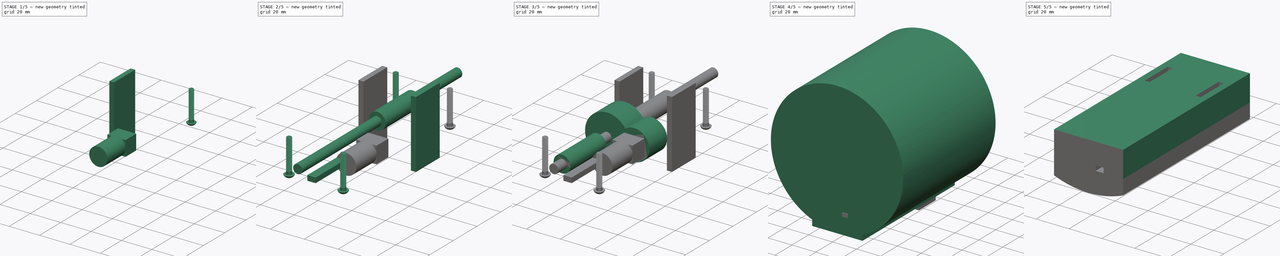
[diagram: build sequence overview — one tinted view per stage of 5, left to right]
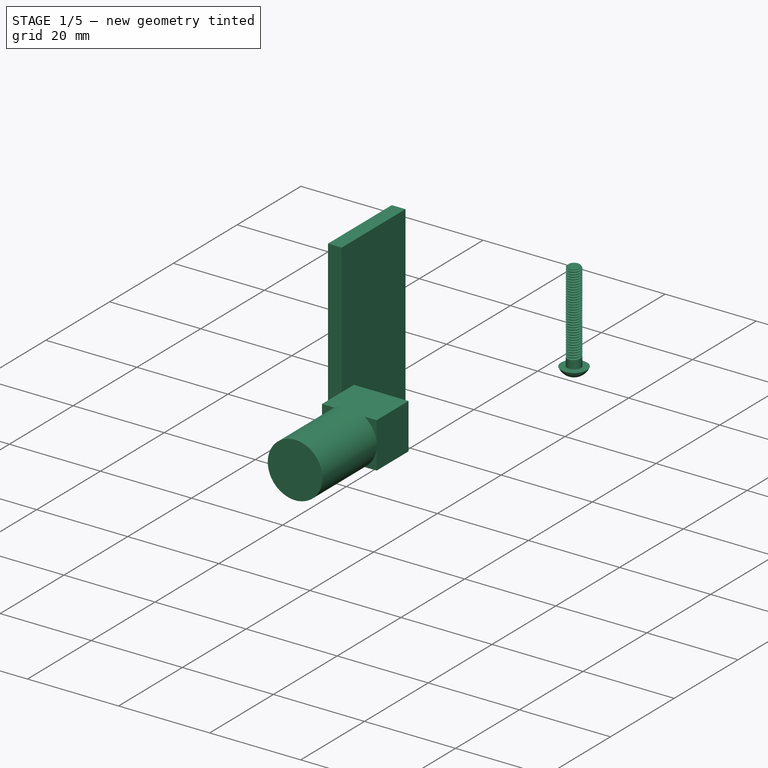
[diagram: stage 1 of 5 — iso view after this stage's code; geometry added in this stage tinted green]
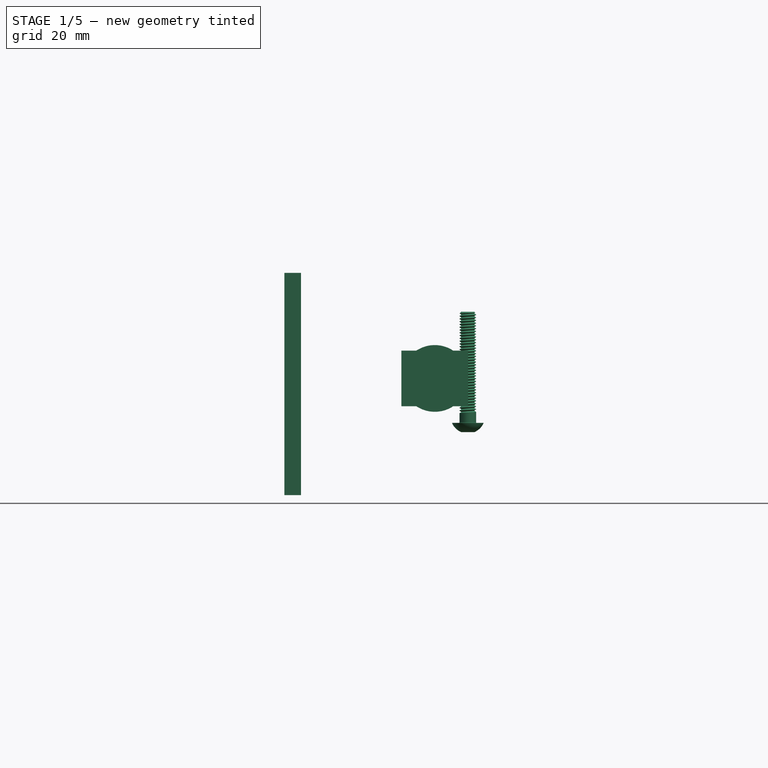
[diagram: stage 1 of 5 — front view after this stage's code; geometry added in this stage tinted green]
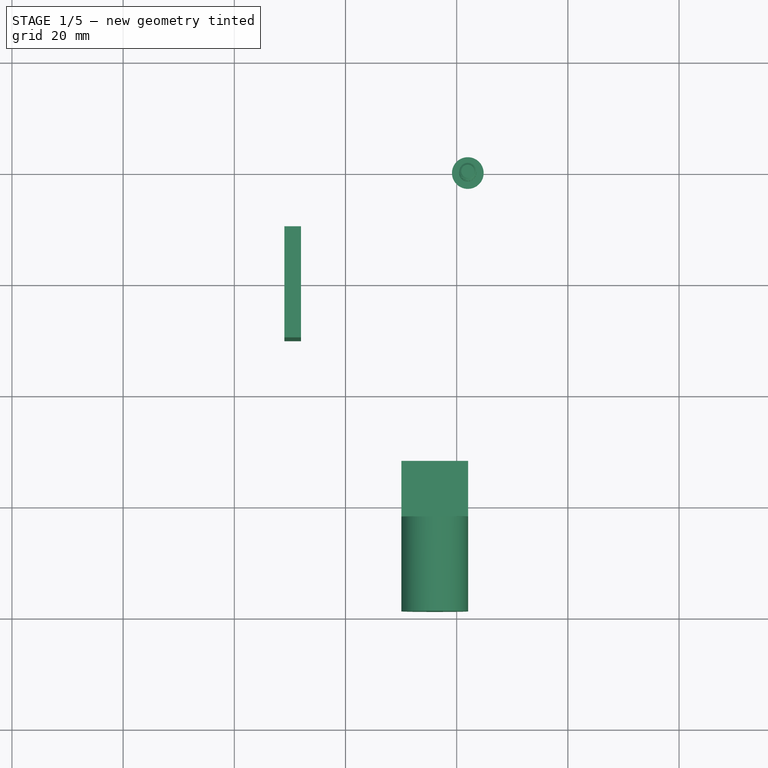
[diagram: stage 1 of 5 — top view after this stage's code; geometry added in this stage tinted green]
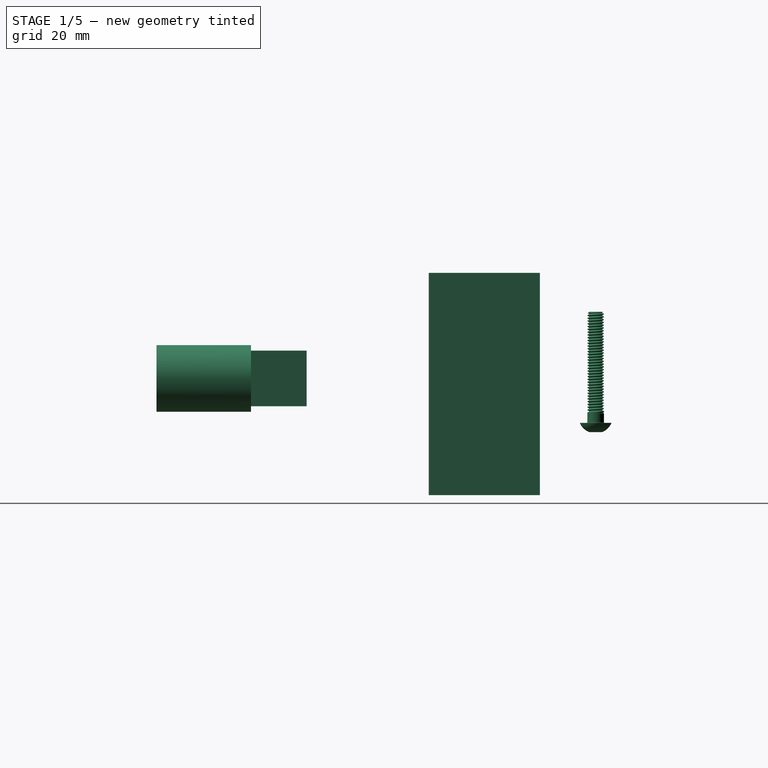
[diagram: stage 1 of 5 — right view after this stage's code; geometry added in this stage tinted green]
FCSTD DOCUMENT  (FreeCAD 0.16R6705 (Git))
Label: corpo_con_scassi2.6
License: All rights reserved
LicenseURL: http://it.wikipedia.org/wiki/<copyright redacted>
objects: Sketcher::SketchObject×13, PartDesign::Pad×12, Part::MultiFuse×3, Part::Fuse×2, Part::FeaturePython×2, Part::Cut×2, Part::Mirroring×1, PartDesign::Pocket×1, Part::MultiCommon×1
note: 50 computed .brp shape members not serialized (recipe doc carries the construction recipe); baked Part::Feature solids carry a one-line shape summary decoded from their .brp

FEATURE [Sketcher::SketchObject] Sketch013
  Placement = pos=(0,-22,0) rot=(1,0,0;1.5708rad)
  sketch-geometry (1):
    g0: Circle CenterX=16.0596 CenterY=9e-06 CenterZ=0 NormalX=0 NormalY=0 NormalZ=1 Radius=6
  constraints (1):
    c: Radius(g0) = 6
FEATURE [PartDesign::Pad] Pad008  label="scasso_motore"
  Length = 17
  Length2 = 100
  Placement = pos=(0,-22,0) rot=(1,0,0;1.5708rad)
  Sketch = -> Sketch013
  Type = 0
FEATURE [Sketcher::SketchObject] Sketch018
  Placement = pos=(0,0,-1) rot=(1,0,0;3.14159rad)
  sketch-geometry (4):
    g0: LineSegment StartX=20 StartY=-9.96359 StartZ=0 EndX=23 EndY=-9.96359 EndZ=0
    g1: LineSegment StartX=23 StartY=-9.96359 StartZ=0 EndX=23 EndY=-29.9636 EndZ=0
    g2: LineSegment StartX=23 StartY=-29.9636 StartZ=0 EndX=20 EndY=-29.9636 EndZ=0
    g3: LineSegment StartX=20 StartY=-29.9636 StartZ=0 EndX=20 EndY=-9.96359 EndZ=0
  constraints (11):
    c: Coincident(g0,g1)
    c: Coincident(g1,g2)
    c: Coincident(g2,g3)
    c: Coincident(g3,g0)
    c: Horizontal(g0)
    c: Horizontal(g2)
    c: Vertical(g1)
    c: Vertical(g3)
    c: DistanceY(g2,g0) = 20
    c: DistanceX(g-1,g0) = 20
    c: DistanceX(g2,g1) = 3
FEATURE [PartDesign::Pad] Pad012  label="buco_per_fascetta"
  Length = 40
  Length2 = 100
  Midplane = true
  Placement = pos=(0,0,-1) rot=(1,0,0;3.14159rad)
  Sketch = -> Sketch018
  Type = 0
FEATURE [Part::Mirroring] Part__Mirroring  label="buco_per_fascetta (Mirror #1)"
  Base = (6,19.96,-1)
  Normal = (1,0,-1.19209e-07)
  Source = -> Pad012
FEATURE [Sketcher::SketchObject] Sketch021
  ExternalGeometry = -> [Pad008]
  Placement = pos=(0,-22,0) rot=(-1,0,0;1.5708rad)
  Support = -> Pad008 [Face2]
  sketch-geometry (4):
    g0: LineSegment StartX=10.0596 StartY=4.99999 StartZ=0 EndX=22.0596 EndY=4.99999 EndZ=0
    g1: LineSegment StartX=22.0596 StartY=4.99999 StartZ=0 EndX=22.0596 EndY=-5.00001 EndZ=0
    g2: LineSegment StartX=22.0596 StartY=-5.00001 StartZ=0 EndX=10.0596 EndY=-5.00001 EndZ=0
    g3: LineSegment StartX=10.0596 StartY=-5.00001 StartZ=0 EndX=10.0596 EndY=4.99999 EndZ=0
  constraints (12):
    c: Coincident(g0,g1)
    c: Coincident(g1,g2)
    c: Coincident(g2,g3)
    c: Coincident(g3,g0)
    c: Horizontal(g0)
    c: Horizontal(g2)
    c: Vertical(g1)
    c: Vertical(g3)
    c: DistanceX(g0,g0) = 12
    c: DistanceX(g0,g-3) = 6
    c: DistanceY(g2,g0) = 10
    c: DistanceY(g-3,g0) = 5
FEATURE [PartDesign::Pad] Pad014  label="sacco_motore_riduttore"
  Length = 10
  Length2 = 100
  Placement = pos=(0,-22,0) rot=(1,0,0;1.5708rad)
  Sketch = -> Sketch021
  Type = 0
FEATURE [Part::FeaturePython] Screw  label="M3x20-Screw"  # Fasteners workbench fastener (typed FeaturePython)
  Placement = pos=(22,40,-8) rot=(1,0,0;3.14159rad)
  diameter = 1
  invert = false
  length = 6
  matchOuter = false
  offset = 0
  thread = true
  type = 20
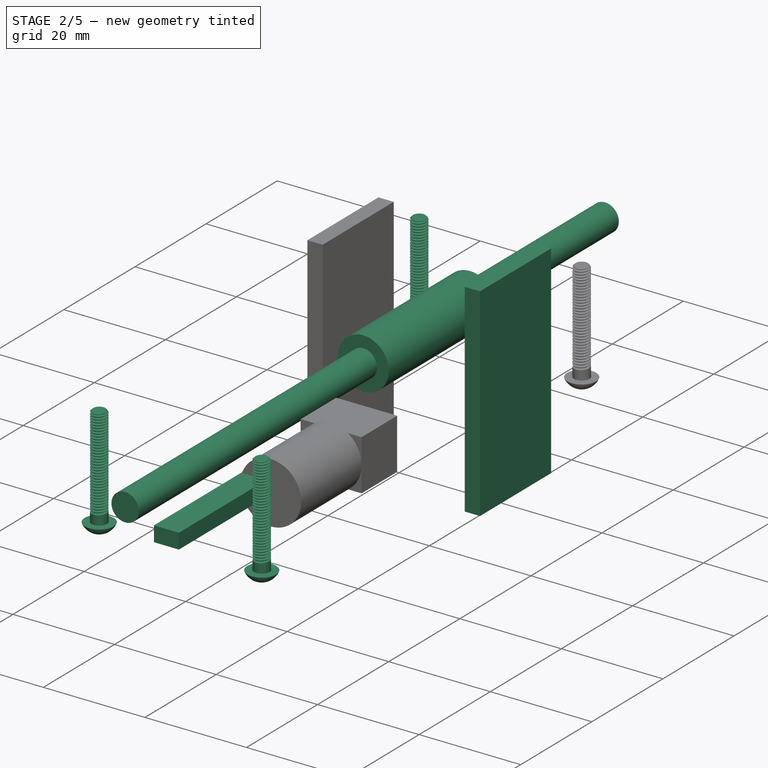
[diagram: stage 2 of 5 — iso view after this stage's code; geometry added in this stage tinted green]
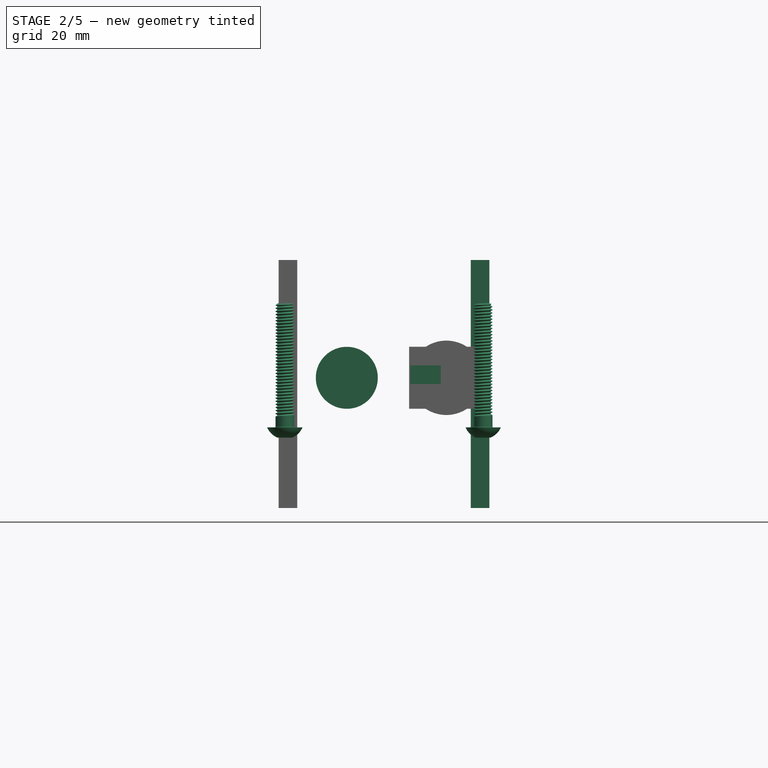
[diagram: stage 2 of 5 — front view after this stage's code; geometry added in this stage tinted green]
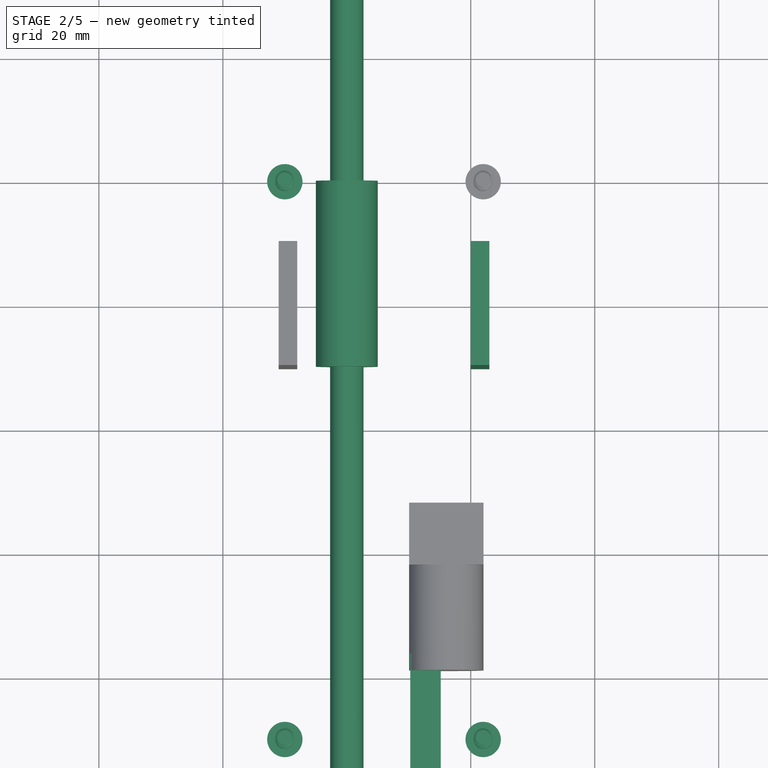
[diagram: stage 2 of 5 — top view after this stage's code; geometry added in this stage tinted green]
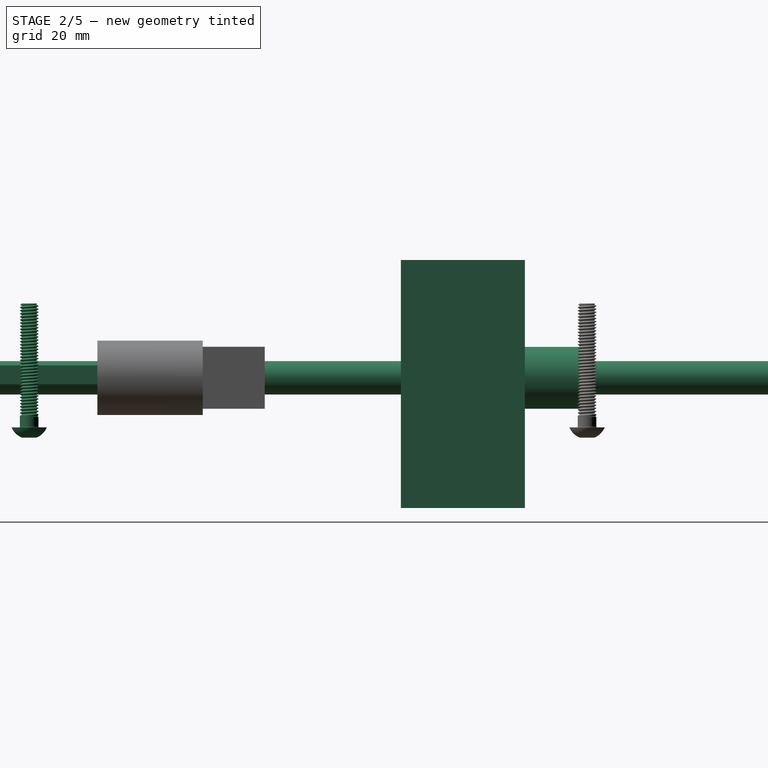
[diagram: stage 2 of 5 — right view after this stage's code; geometry added in this stage tinted green]
FEATURE [Sketcher::SketchObject] Sketch011
  Placement = pos=(0,40,0) rot=(1,0,0;1.5708rad)
  sketch-geometry (1):
    g0: Circle CenterX=0 CenterY=0 CenterZ=0 NormalX=0 NormalY=0 NormalZ=1 Radius=5
  constraints (1):
    c: Radius(g0) = 5
FEATURE [PartDesign::Pad] Pad007
  Length = 30
  Length2 = 100
  Placement = pos=(0,40,0) rot=(1,0,0;1.5708rad)
  Sketch = -> Sketch011
  Type = 0
FEATURE [Sketcher::SketchObject] Sketch017
  Placement = pos=(0,0,-1) rot=(1,0,0;3.14159rad)
  sketch-geometry (4):
    g0: LineSegment StartX=10.2397 StartY=63.5231 StartZ=0 EndX=15.1553 EndY=63.5231 EndZ=0
    g1: LineSegment StartX=15.1553 StartY=63.5231 StartZ=0 EndX=15.1553 EndY=36.2137 EndZ=0
    g2: LineSegment StartX=15.1553 StartY=36.2137 StartZ=0 EndX=10.2397 EndY=36.2137 EndZ=0
    g3: LineSegment StartX=10.2397 StartY=36.2137 StartZ=0 EndX=10.2397 EndY=63.5231 EndZ=0
  constraints (8):
    c: Coincident(g0,g1)
    c: Coincident(g1,g2)
    c: Coincident(g2,g3)
    c: Coincident(g3,g0)
    c: Horizontal(g0)
    c: Horizontal(g2)
    c: Vertical(g1)
    c: Vertical(g3)
FEATURE [PartDesign::Pad] Pad010  label="scasso_fili_motore"
  Length = 3
  Length2 = 100
  Placement = pos=(0,0,-1) rot=(1,0,0;3.14159rad)
  Reversed = true
  Sketch = -> Sketch017
  Type = 0
FEATURE [PartDesign::Pad] Pad002  label="perno"
  Length = 135
  Length2 = 200
  Placement = pos=(0,78,0) rot=(1,0,0;1.5708rad)
  Sketch = -> Sketch006
  Type = 0
FEATURE [Part::MultiFuse] Fusion003  label="scassi_per_fascette"
  Shapes = -> [Pad012,Part__Mirroring]
FEATURE [Part::FeaturePython] Array  label="scassi_viti"  # Draft array (typed FeaturePython)
  Angle = 360
  ArrayType = 0
  Axis = (0,0,1)
  Base = -> Screw
  Center = (0,0,0)
  Fuse = false
  IntervalAxis = (0,0,0)
  IntervalX = (-32,0,0)
  IntervalY = (0,-90,0)
  IntervalZ = (0,0,0)
  NumberPolar = 1
  NumberX = 2
  NumberY = 2
  NumberZ = 1
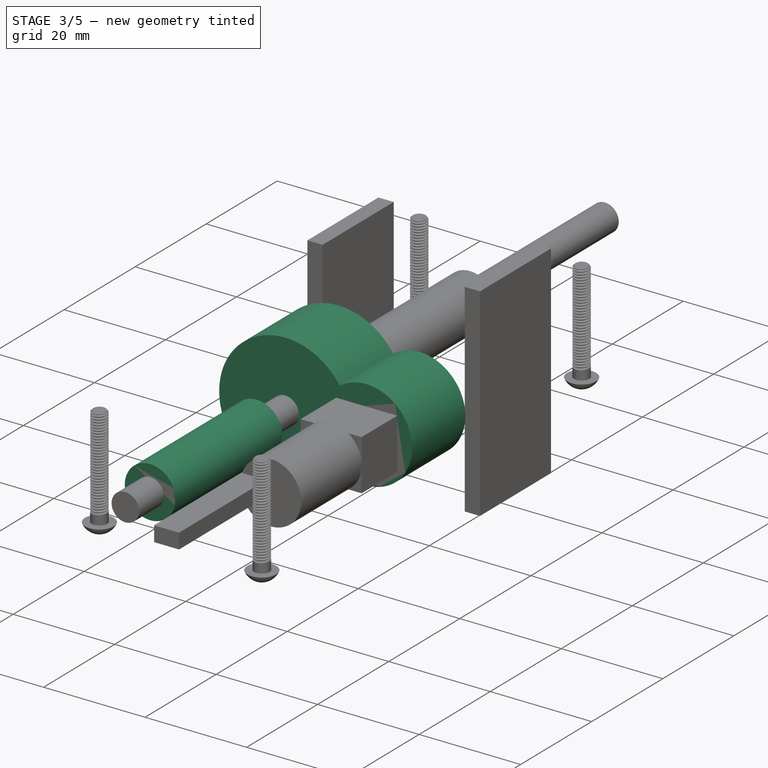
[diagram: stage 3 of 5 — iso view after this stage's code; geometry added in this stage tinted green]
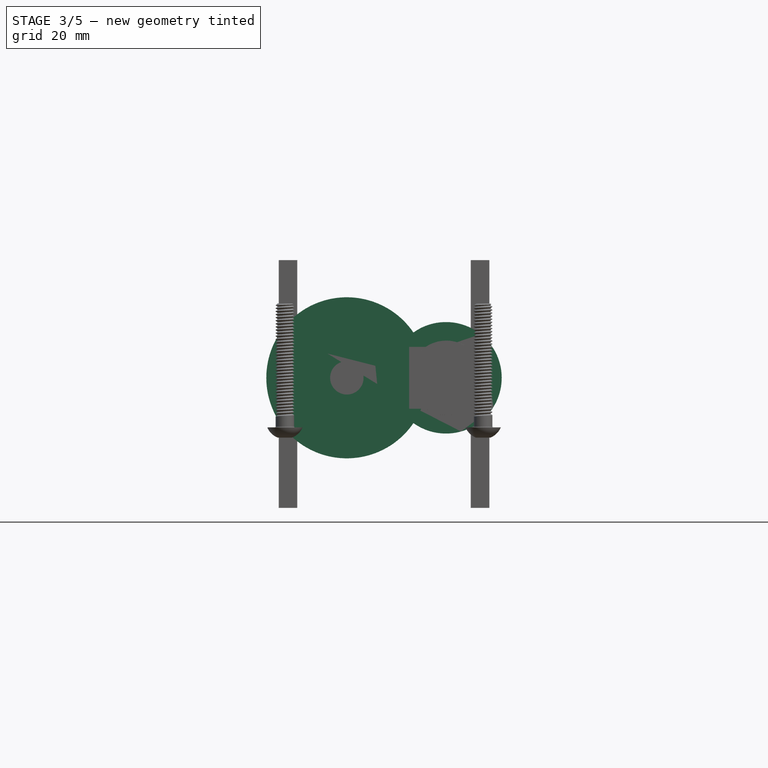
[diagram: stage 3 of 5 — front view after this stage's code; geometry added in this stage tinted green]
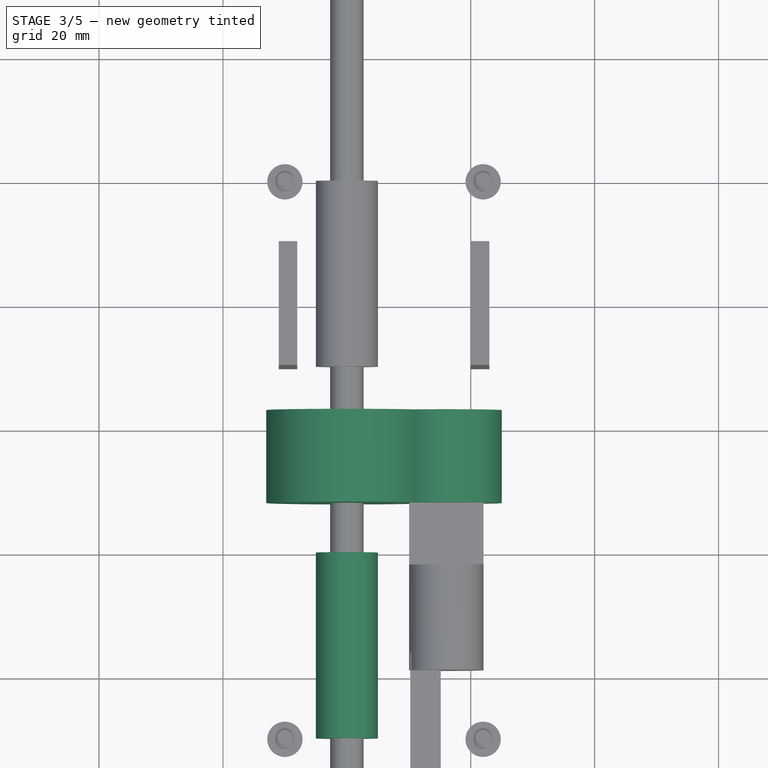
[diagram: stage 3 of 5 — top view after this stage's code; geometry added in this stage tinted green]
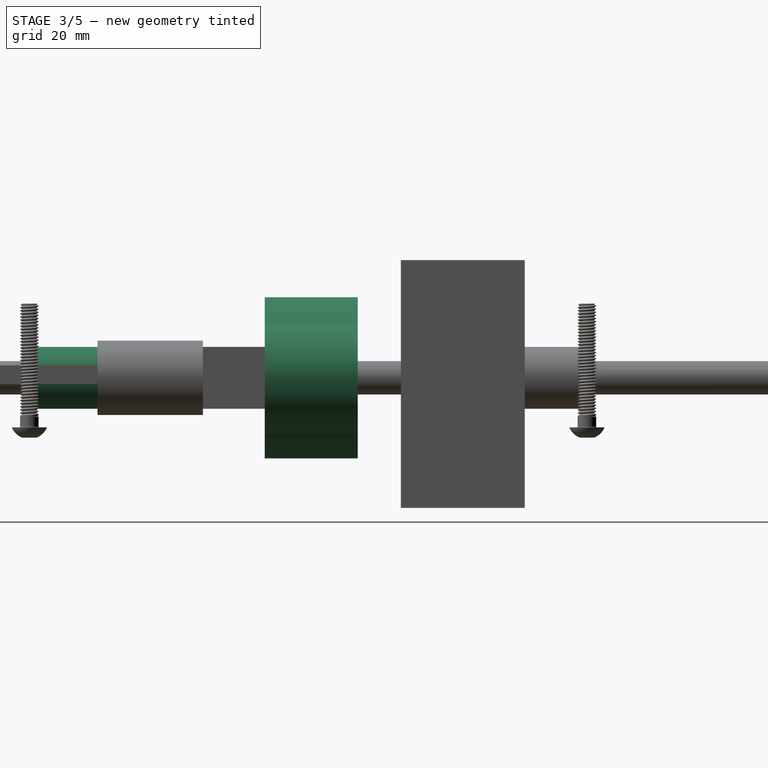
[diagram: stage 3 of 5 — right view after this stage's code; geometry added in this stage tinted green]
FEATURE [Sketcher::SketchObject] Sketch008
  Placement = pos=(0,3,0) rot=(1,0,0;1.5708rad)
  sketch-geometry (1):
    g0: Circle CenterX=0 CenterY=0 CenterZ=0 NormalX=0 NormalY=0 NormalZ=1 Radius=13
  constraints (1):
    c: Radius(g0) = 13
FEATURE [PartDesign::Pad] Pad004  label="scasso_ruota_dentata"
  Length = 15
  Length2 = 100
  Placement = pos=(0,3,0) rot=(1,0,0;1.5708rad)
  Sketch = -> Sketch008
  Type = 0
FEATURE [Sketcher::SketchObject] Sketch009
  Placement = pos=(0,3,0) rot=(1,0,0;1.5708rad)
  sketch-geometry (1):
    g0: Circle CenterX=15.9971 CenterY=9e-06 CenterZ=0 NormalX=0 NormalY=0 NormalZ=1 Radius=9
  constraints (1):
    c: Radius(g0) = 9
FEATURE [PartDesign::Pad] Pad005  label="scasso_ruota_dentata_motore"
  Length = 15
  Length2 = 100
  Placement = pos=(0,3,0) rot=(1,0,0;1.5708rad)
  Sketch = -> Sketch009
  Type = 0
FEATURE [Sketcher::SketchObject] Sketch010
  Placement = pos=(0,-20,0) rot=(1,0,0;1.5708rad)
  sketch-geometry (1):
    g0: Circle CenterX=0 CenterY=0 CenterZ=0 NormalX=0 NormalY=0 NormalZ=1 Radius=5
  constraints (1):
    c: Radius(g0) = 5
FEATURE [PartDesign::Pad] Pad006
  Length = 30
  Length2 = 100
  Placement = pos=(0,-20,0) rot=(1,0,0;1.5708rad)
  Sketch = -> Sketch010
  Type = 0
FEATURE [Part::Fuse] Fusion002  label="scassi_perno"
  Base = -> Pad006
  Tool = -> Pad007
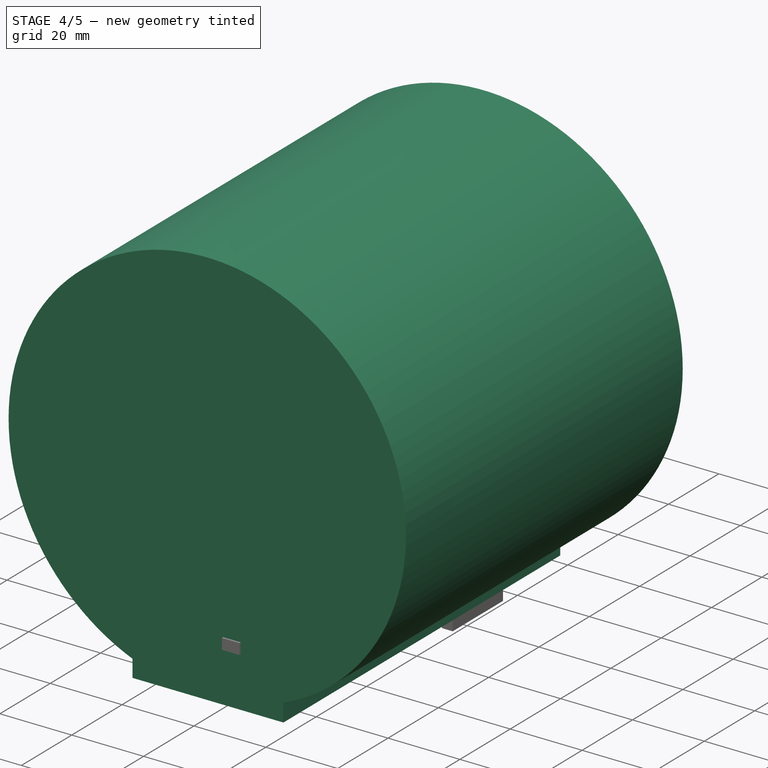
[diagram: stage 4 of 5 — iso view after this stage's code; geometry added in this stage tinted green]
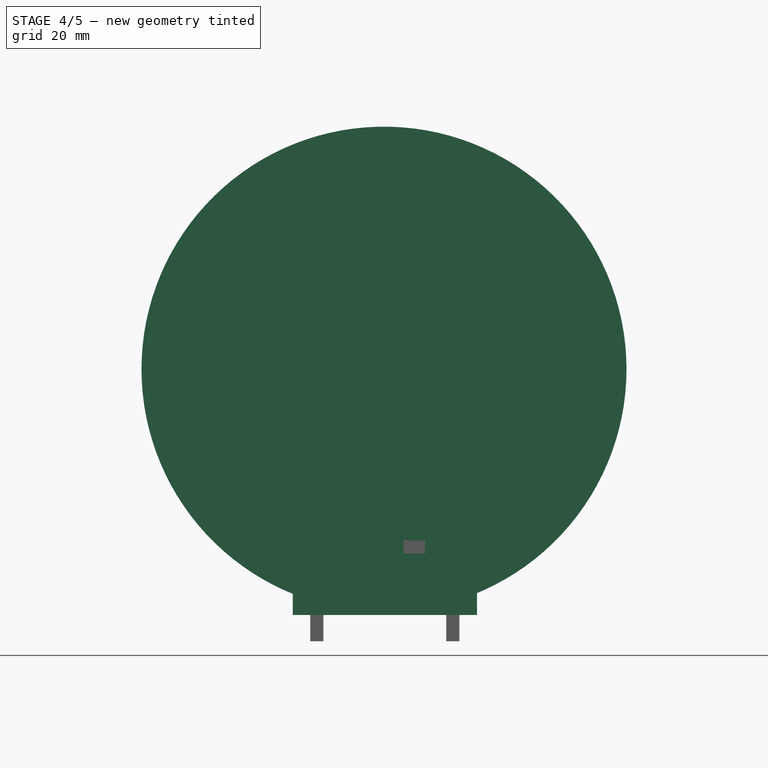
[diagram: stage 4 of 5 — front view after this stage's code; geometry added in this stage tinted green]
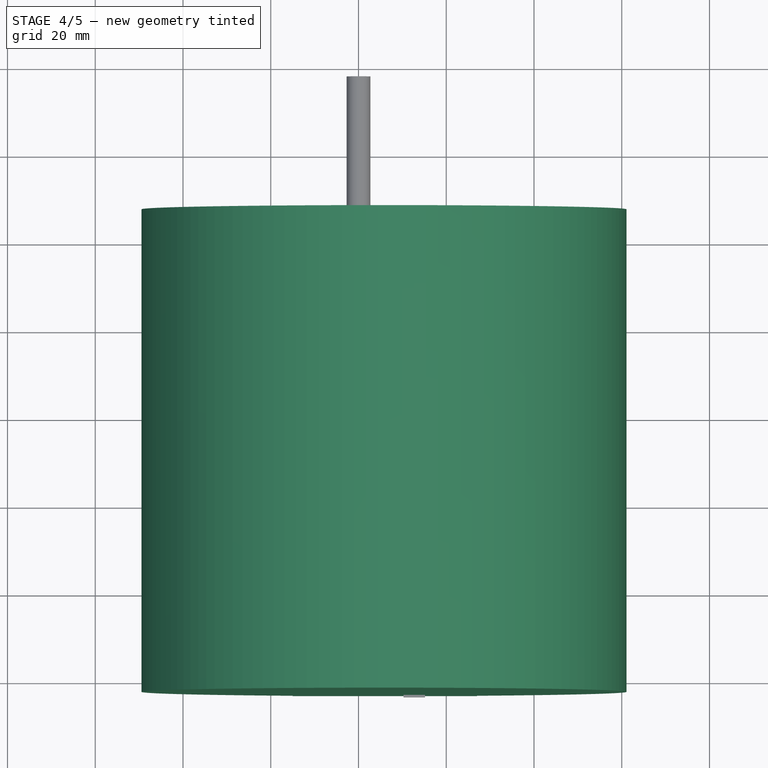
[diagram: stage 4 of 5 — top view after this stage's code; geometry added in this stage tinted green]
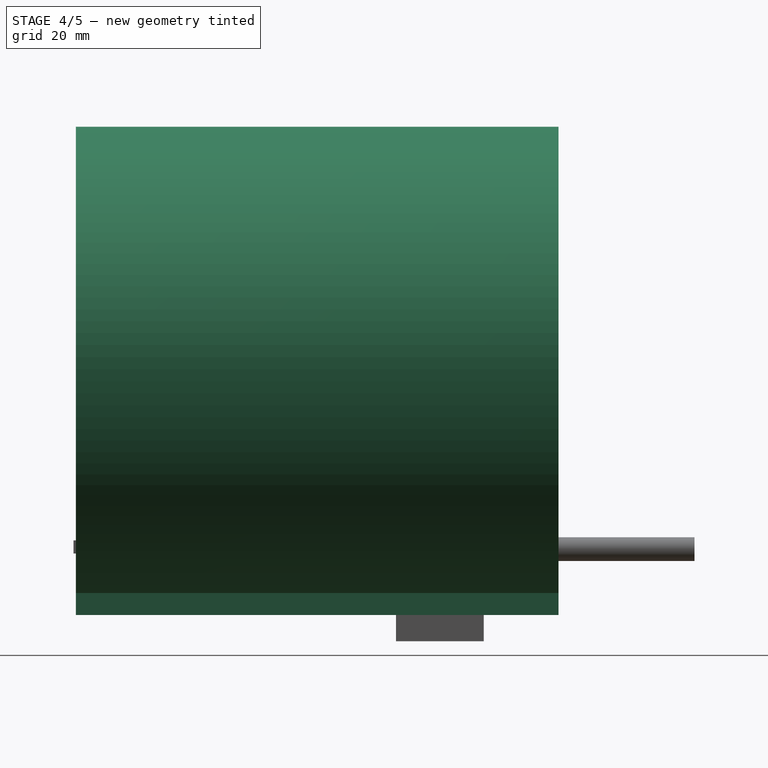
[diagram: stage 4 of 5 — right view after this stage's code; geometry added in this stage tinted green]
FEATURE [Part::Fuse] Fusion001  label="scassi_ruote_dentate"
  Base = -> Pad005
  Tool = -> Pad004
FEATURE [Sketcher::SketchObject] Sketch016
  Placement = pos=(0,-8,0) rot=(1,0,0;1.5708rad)
  sketch-geometry (4):
    g0: LineSegment StartX=27 StartY=-1 StartZ=0 EndX=-15 EndY=-1 EndZ=0
    g1: LineSegment StartX=-15 StartY=-1 StartZ=0 EndX=-15 EndY=-15 EndZ=0
    g2: LineSegment StartX=-15 StartY=-15 StartZ=0 EndX=27 EndY=-15 EndZ=0
    g3: LineSegment StartX=27 StartY=-15 StartZ=0 EndX=27 EndY=-1 EndZ=0
  constraints (12):
    c: Coincident(g0,g1)
    c: Coincident(g1,g2)
    c: Coincident(g2,g3)
    c: Coincident(g3,g0)
    c: Horizontal(g0)
    c: Horizontal(g2)
    c: Vertical(g1)
    c: Vertical(g3)
    c: DistanceX(g-1,g2) = 27
    c: DistanceY(g2,g-1) = 15
    c: DistanceY(g0,g-1) = 1
    c: DistanceX(g0,g-1) = 15
FEATURE [PartDesign::Pad] Pad009  label="tappo"
  Length = 110
  Length2 = 100
  Midplane = true
  Placement = pos=(0,-8,0) rot=(1,0,0;1.5708rad)
  Sketch = -> Sketch016
  Type = 0
FEATURE [Sketcher::SketchObject] Sketch020
  Placement = pos=(0,-63,0) rot=(1,0,0;1.5708rad)
  sketch-geometry (1):
    g0: Circle CenterX=5.80598 CenterY=41.0195 CenterZ=0 NormalX=0 NormalY=0 NormalZ=1 Radius=55.2735
FEATURE [PartDesign::Pad] Pad013
  Length = 110
  Length2 = 100
  Placement = pos=(0,-63,0) rot=(1,0,0;1.5708rad)
  Reversed = true
  Sketch = -> Sketch020
  Type = 0
FEATURE [Part::MultiFuse] Fusion  label="tutti_gli_scassi"
  Shapes = -> [Pad008,Pad002,Pad010,Fusion001,Fusion002,Array,Fusion003,Pad014]
FEATURE [Part::MultiFuse] Fusion004  label="tutti_scassi_mod1"
  Shapes = -> [Fusion,Pad014]
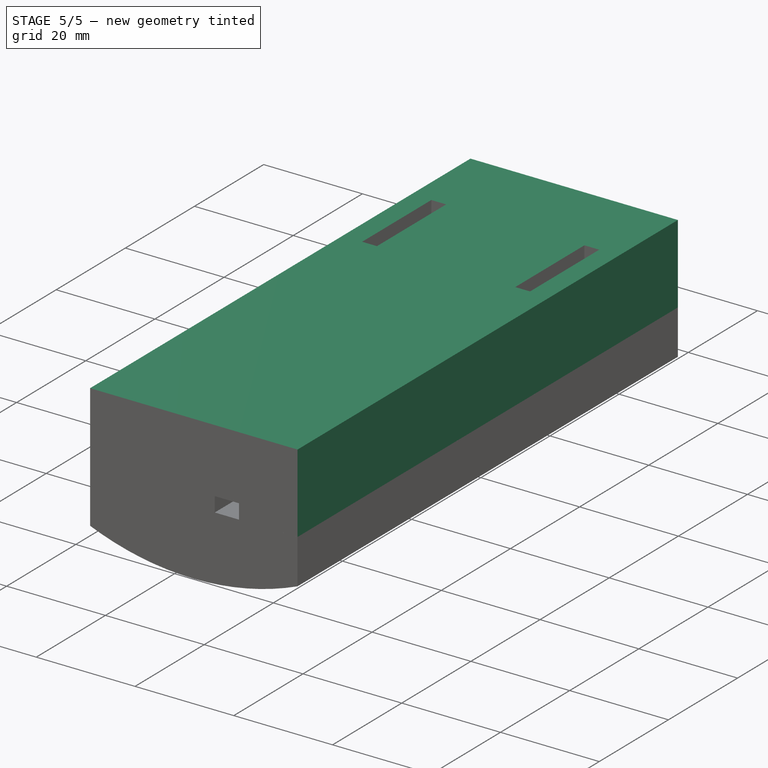
[diagram: stage 5 of 5 — iso view after this stage's code; geometry added in this stage tinted green]
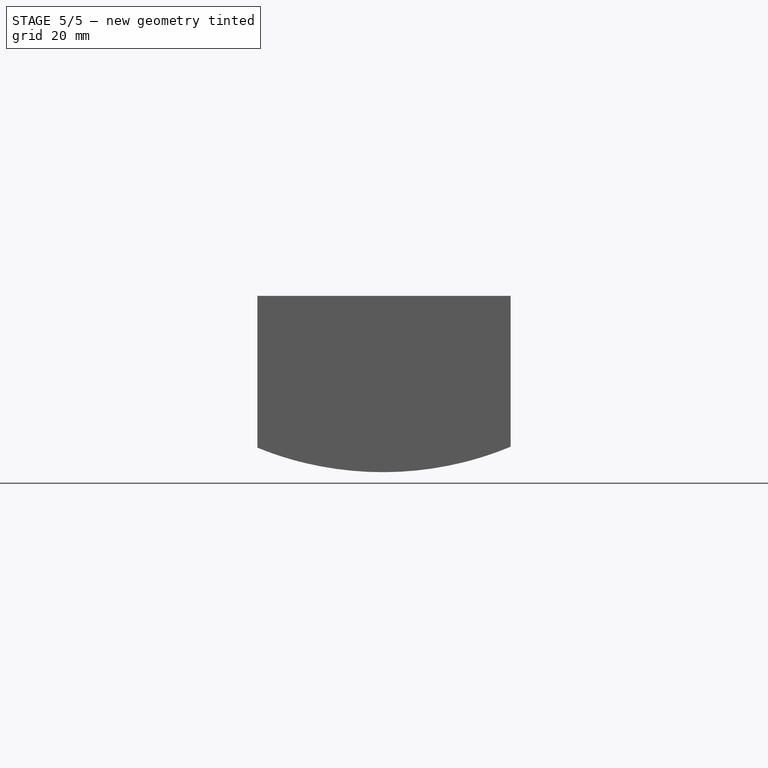
[diagram: stage 5 of 5 — front view after this stage's code; geometry added in this stage tinted green]
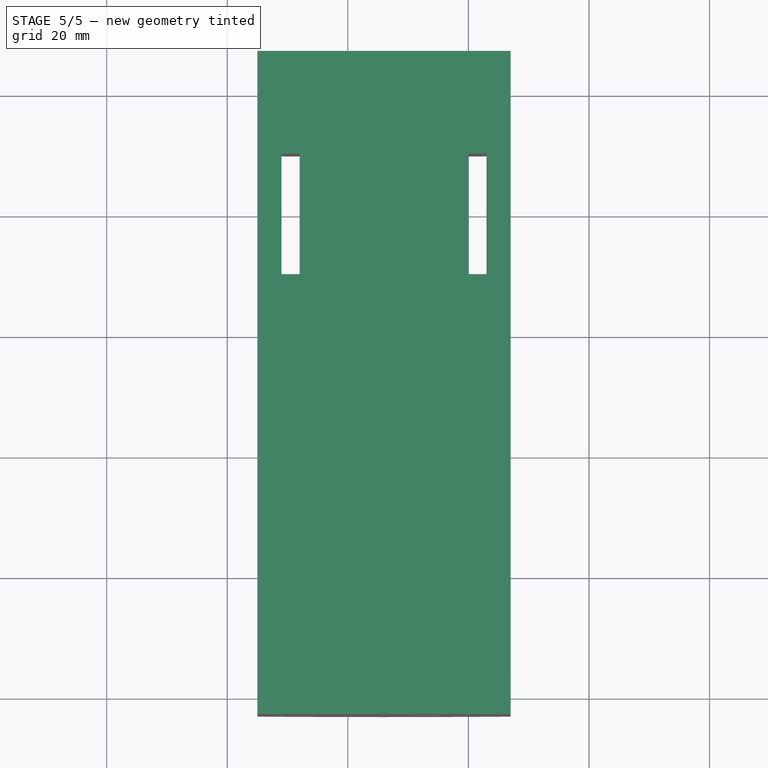
[diagram: stage 5 of 5 — top view after this stage's code; geometry added in this stage tinted green]
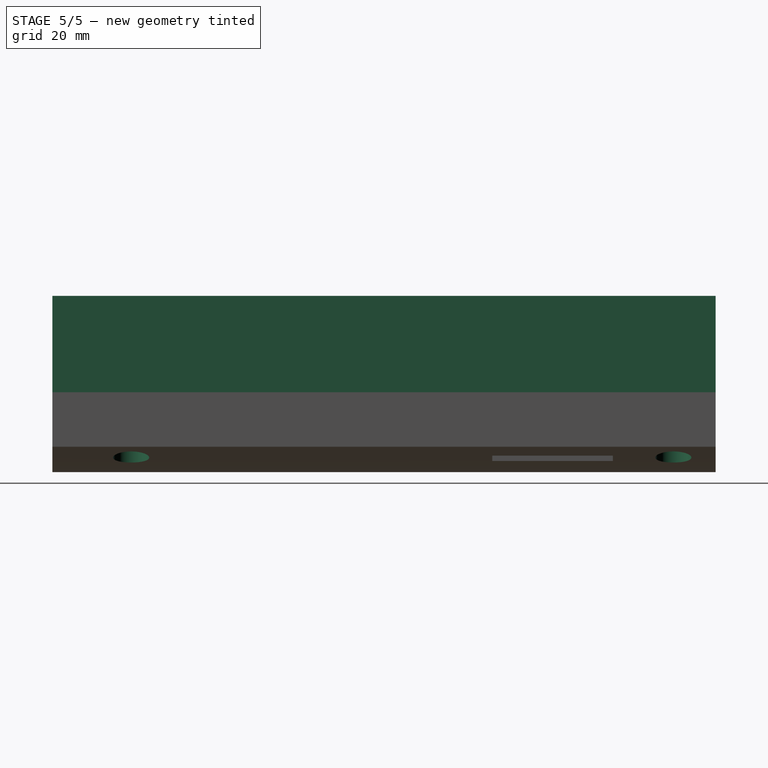
[diagram: stage 5 of 5 — right view after this stage's code; geometry added in this stage tinted green]
FEATURE [Sketcher::SketchObject] Sketch006
  Placement = pos=(0,78,0) rot=(1,0,0;1.5708rad)
  sketch-geometry (1):
    g0: Circle CenterX=0 CenterY=0 CenterZ=0 NormalX=0 NormalY=0 NormalZ=1 Radius=2.7
  constraints (1):
    c: Radius(g0) = 2.7
FEATURE [Sketcher::SketchObject] Sketch
  Placement = pos=(0,-8,0) rot=(1,0,0;1.5708rad)
  sketch-geometry (4):
    g0: LineSegment StartX=-15 StartY=-1 StartZ=0 EndX=27 EndY=-1 EndZ=0
    g1: LineSegment StartX=27 StartY=-1 StartZ=0 EndX=27 EndY=15 EndZ=0
    g2: LineSegment StartX=27 StartY=15 StartZ=0 EndX=-15 EndY=15 EndZ=0
    g3: LineSegment StartX=-15 StartY=15 StartZ=0 EndX=-15 EndY=-1 EndZ=0
  constraints (12):
    c: Coincident(g0,g1)
    c: Coincident(g1,g2)
    c: Coincident(g2,g3)
    c: Coincident(g3,g0)
    c: Horizontal(g0)
    c: Horizontal(g2)
    c: Vertical(g1)
    c: Vertical(g3)
    c: DistanceY(g0,g-1) = 1
    c: DistanceY(g-1,g2) = 15
    c: DistanceX(g-1,g1) = 27
    c: DistanceX(g0,g-1) = 15
FEATURE [PartDesign::Pad] Pad  label="corpo"
  Length = 110
  Length2 = 100
  Midplane = true
  Placement = pos=(0,-8,0) rot=(1,0,0;1.5708rad)
  Sketch = -> Sketch
  Type = 0
FEATURE [Part::Cut] Cut  label="corpo_con_scassi"
  Base = -> Pad
  Tool = -> Fusion004
FEATURE [Part::Cut] Cut001  label="tappo_con_scassi"
  Base = -> Pad009
  Tool = -> Fusion004
FEATURE [Sketcher::SketchObject] Sketch019
  ExternalGeometry = -> [Cut001]
  Placement = pos=(0,0,-15) rot=(1,0,0;3.14159rad)
  Support = -> Cut001 [Face34]
  sketch-geometry (4):
    g0: Circle CenterX=22.0091 CenterY=49.9443 CenterZ=0 NormalX=0 NormalY=0 NormalZ=1 Radius=3
    g1: Circle CenterX=-9.98529 CenterY=49.9912 CenterZ=0 NormalX=0 NormalY=0 NormalZ=1 Radius=3
    g2: Circle CenterX=-9.99998 CenterY=-39.9964 CenterZ=0 NormalX=0 NormalY=0 NormalZ=1 Radius=3
    g3: Circle CenterX=22.0148 CenterY=-39.9938 CenterZ=0 NormalX=0 NormalY=0 NormalZ=1 Radius=3
  constraints (4):
    c: Equal(g2,g3)
    c: Equal(g3,g0)
    c: Equal(g0,g1)
    c: Radius(g1) = 3
FEATURE [PartDesign::Pocket] Pocket  label="tappo_con_scassi_svasi"
  Length = 7
  Sketch = -> Sketch019
  Type = 0
FEATURE [Part::MultiCommon] Common  label="tappo_scassi_svasi_tondo"
  Shapes = -> [Pocket,Pad013]
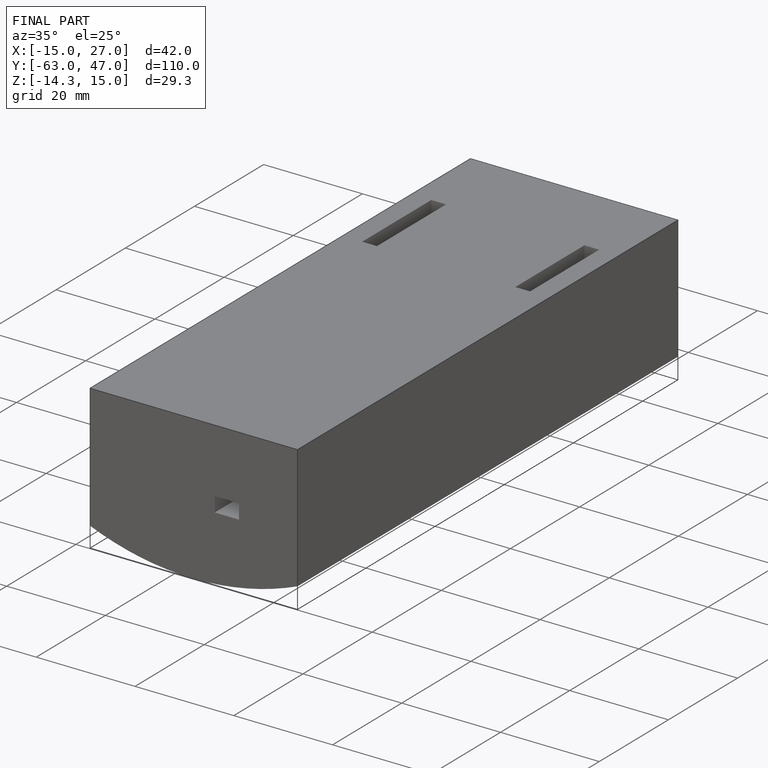
[diagram: finished part — iso view with bounding-box wireframe]
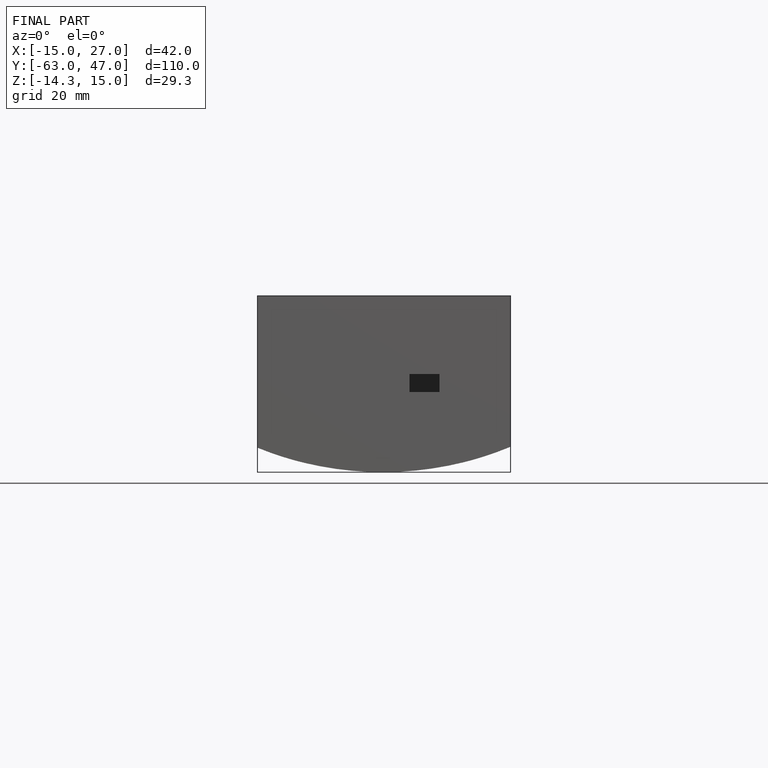
[diagram: finished part — front view with bounding-box wireframe]
